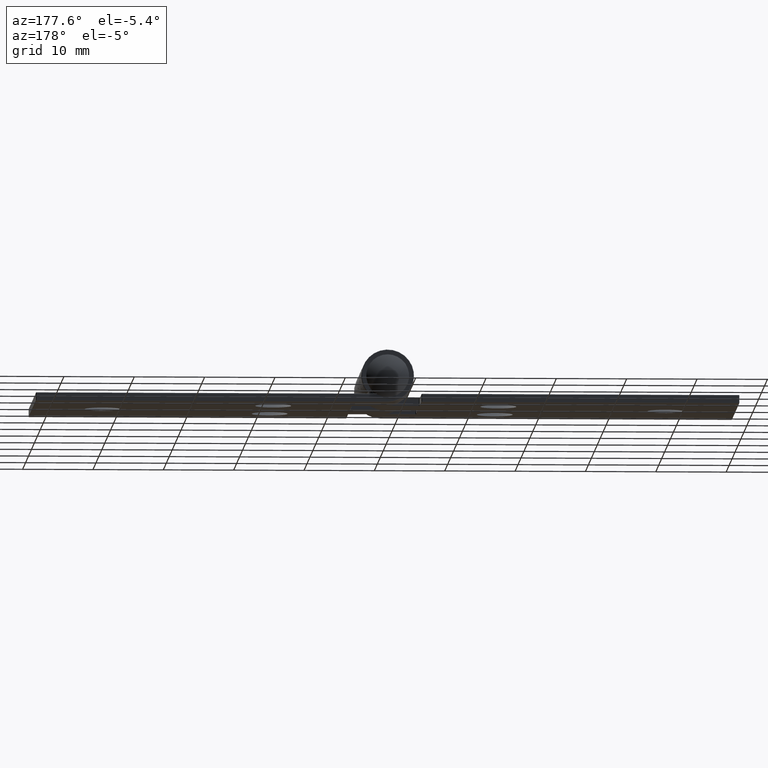
[diagram: clean part render]
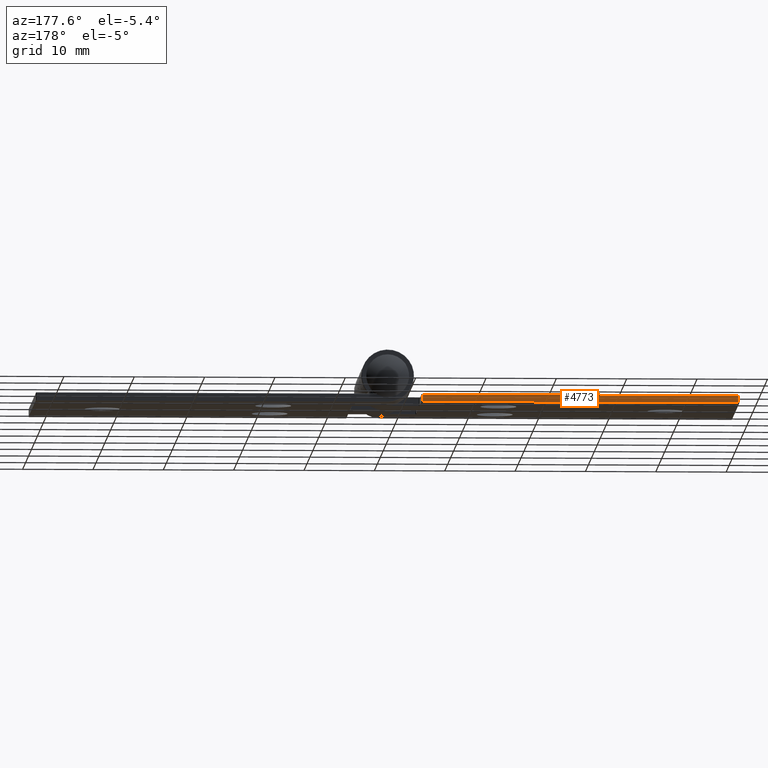
[diagram: same view with one face highlighted and labeled with its STEP entity id]
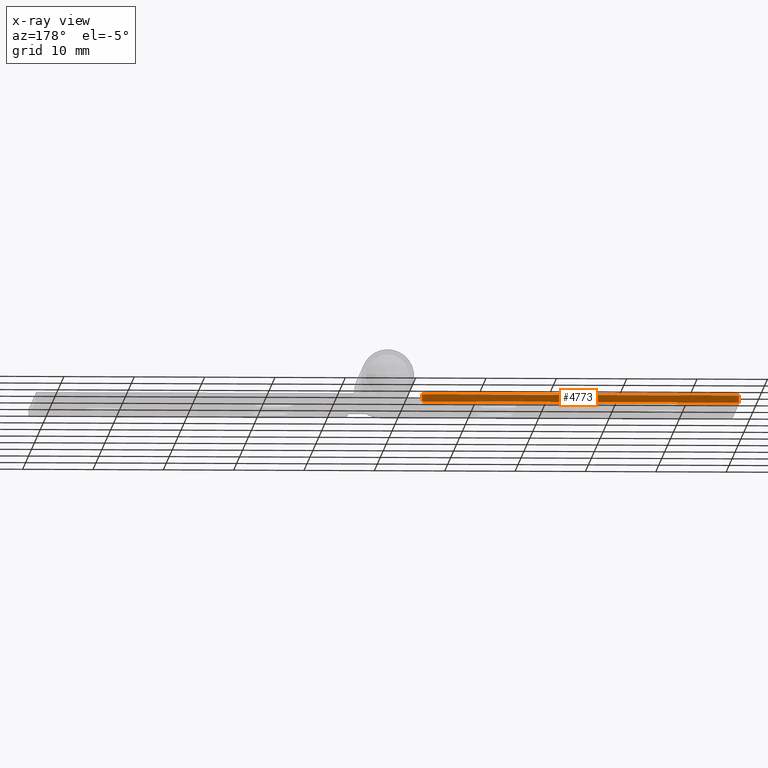
[diagram: x-ray of the same camera — body ghosted, the highlighted face saturated]
A machine part, auxiliary view. The second image highlights one B-rep face of the part: STEP entity #4773.
The next image is the same camera in x-ray: the body ghosted, the highlighted face saturated — about 0% of this face is hidden behind the body in this view.
In plain terms, the highlighted planar face has unit normal (0, -1, 0).
Its self-contained STEP definition (entity closure, byte-faithful):
#6 = VERTEX_POINT ( 'NONE', #2593 ) ;
#260 = DIRECTION ( 'NONE',  ( 0.000000000000000000, -0.000000000000000000, -1.000000000000000000 ) ) ;
#605 = DIRECTION ( 'NONE',  ( 0.000000000000000000, -1.000000000000000000, 0.000000000000000000 ) ) ;
#631 = ORIENTED_EDGE ( 'NONE', *, *, #3255, .T. ) ;
#668 = PLANE ( 'NONE',  #2080 ) ;
#839 = ORIENTED_EDGE ( 'NONE', *, *, #4162, .T. ) ;
#1469 = ORIENTED_EDGE ( 'NONE', *, *, #2846, .T. ) ;
#1515 = CARTESIAN_POINT ( 'NONE',  ( 0.1000000000000028644, 12.50000000000000000, 3.750000000000000000 ) ) ;
#1671 = CARTESIAN_POINT ( 'NONE',  ( 45.09999999999999432, 12.50000000000000000, 1.099999999999999867 ) ) ;
#1740 = ORIENTED_EDGE ( 'NONE', *, *, #4609, .T. ) ;
#1759 = VECTOR ( 'NONE', #3033, 1000.000000000000000 ) ;
#1932 = VECTOR ( 'NONE', #3340, 1000.000000000000000 ) ;
#2076 = CARTESIAN_POINT ( 'NONE',  ( 0.1000000000000028644, 12.50000000000000000, 0.09999999999999982514 ) ) ;
#2080 = AXIS2_PLACEMENT_3D ( 'NONE', #2870, #605, #260 ) ;
#2146 = EDGE_LOOP ( 'NONE', ( #1740, #839, #631, #1469 ) ) ;
#2265 = CARTESIAN_POINT ( 'NONE',  ( 50.00000000000000000, 12.50000000000000000, 1.099999999999999867 ) ) ;
#2391 = CARTESIAN_POINT ( 'NONE',  ( 45.09999999999999432, 12.50000000000000000, 0.000000000000000000 ) ) ;
#2593 = CARTESIAN_POINT ( 'NONE',  ( 45.09999999999999432, 12.50000000000000000, 0.09999999999999982514 ) ) ;
#2633 = LINE ( 'NONE', #2391, #4855 ) ;
#2700 = VERTEX_POINT ( 'NONE', #3051 ) ;
#2846 = EDGE_CURVE ( 'NONE', #4582, #6, #2633, .T. ) ;
#2870 = CARTESIAN_POINT ( 'NONE',  ( 50.00000000000000000, 12.50000000000000000, 3.750000000000000000 ) ) ;
#3033 = DIRECTION ( 'NONE',  ( 0.000000000000000000, 0.000000000000000000, 1.000000000000000000 ) ) ;
#3051 = CARTESIAN_POINT ( 'NONE',  ( 0.1000000000000028644, 12.50000000000000000, 1.099999999999999867 ) ) ;
#3118 = DIRECTION ( 'NONE',  ( -0.000000000000000000, -0.000000000000000000, -1.000000000000000000 ) ) ;
#3154 = DIRECTION ( 'NONE',  ( -1.000000000000000000, 0.000000000000000000, 0.000000000000000000 ) ) ;
#3238 = VECTOR ( 'NONE', #3154, 1000.000000000000000 ) ;
#3255 = EDGE_CURVE ( 'NONE', #2700, #4582, #4478, .T. ) ;
#3340 = DIRECTION ( 'NONE',  ( 1.000000000000000000, 0.000000000000000000, 0.000000000000000000 ) ) ;
#3823 = VERTEX_POINT ( 'NONE', #2076 ) ;
#4144 = FACE_OUTER_BOUND ( 'NONE', #2146, .T. ) ;
#4162 = EDGE_CURVE ( 'NONE', #3823, #2700, #4908, .T. ) ;
#4253 = LINE ( 'NONE', #4281, #3238 ) ;
#4281 = CARTESIAN_POINT ( 'NONE',  ( 50.00000000000000000, 12.50000000000000000, 0.09999999999999982514 ) ) ;
#4478 = LINE ( 'NONE', #2265, #1932 ) ;
#4582 = VERTEX_POINT ( 'NONE', #1671 ) ;
#4609 = EDGE_CURVE ( 'NONE', #6, #3823, #4253, .T. ) ;
#4773 = ADVANCED_FACE ( 'NONE', ( #4144 ), #668, .F. ) ;
#4855 = VECTOR ( 'NONE', #3118, 1000.000000000000000 ) ;
#4908 = LINE ( 'NONE', #1515, #1759 ) ;